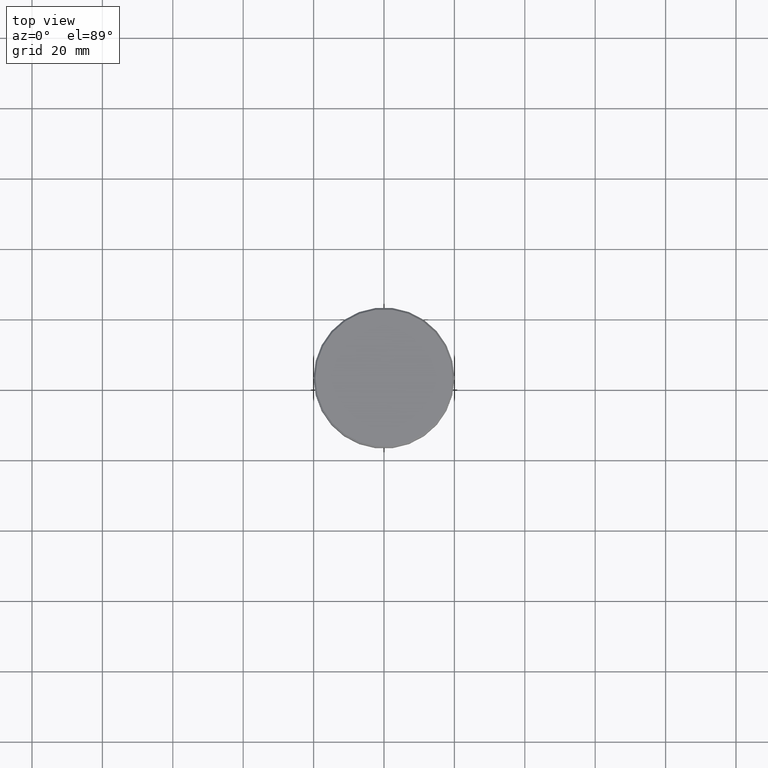
[diagram: clean part render]
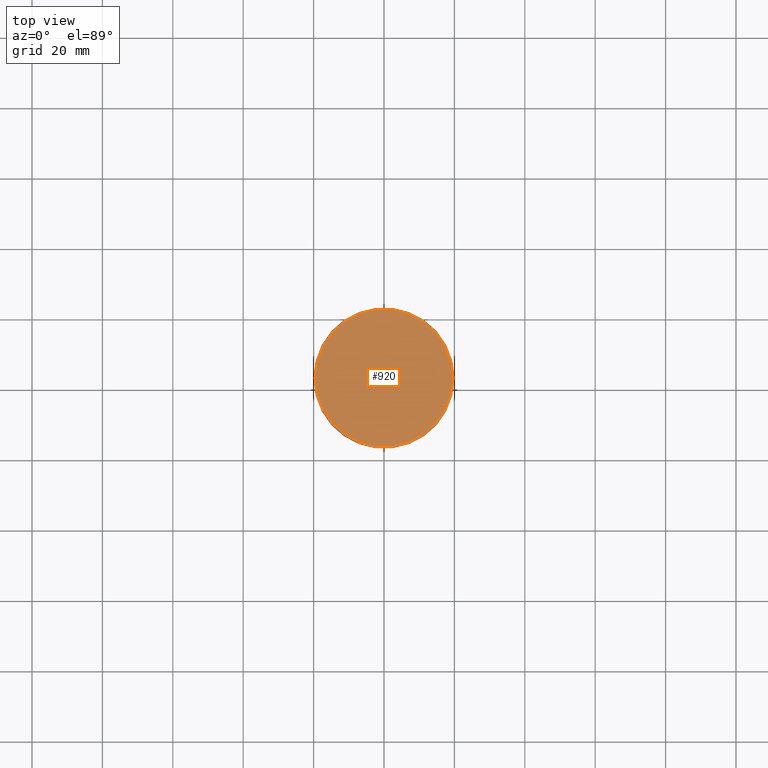
[diagram: same view with one face highlighted and labeled with its STEP entity id]
A machine part, top view. The second image highlights one B-rep face of the part: STEP entity #920.
In plain terms, the highlighted planar face has unit normal (0, -0, 1).
Its self-contained STEP definition (entity closure, byte-faithful):
#27 = CARTESIAN_POINT ( 'NONE',  ( 0.000000000000000000, 0.000000000000000000, 0.000000000000000000 ) ) ;
#29 = CARTESIAN_POINT ( 'NONE',  ( 0.000000000000000000, 0.000000000000000000, 0.000000000000000000 ) ) ;
#133 = DIRECTION ( 'NONE',  ( 1.000000000000000000, 0.000000000000000000, 0.000000000000000000 ) ) ;
#302 = AXIS2_PLACEMENT_3D ( 'NONE', #27, #579, #133 ) ;
#332 = EDGE_LOOP ( 'NONE', ( #1114, #352 ) ) ;
#352 = ORIENTED_EDGE ( 'NONE', *, *, #480, .T. ) ;
#458 = VERTEX_POINT ( 'NONE', #1032 ) ;
#480 = EDGE_CURVE ( 'NONE', #1034, #458, #602, .T. ) ;
#497 = DIRECTION ( 'NONE',  ( 1.000000000000000000, 0.000000000000000000, 0.000000000000000000 ) ) ;
#500 = EDGE_CURVE ( 'NONE', #458, #1034, #551, .T. ) ;
#551 = CIRCLE ( 'NONE', #1140, 19.49999999999998934 ) ;
#579 = DIRECTION ( 'NONE',  ( 0.000000000000000000, -0.000000000000000000, 1.000000000000000000 ) ) ;
#602 = CIRCLE ( 'NONE', #752, 19.49999999999998934 ) ;
#667 = FACE_OUTER_BOUND ( 'NONE', #332, .T. ) ;
#752 = AXIS2_PLACEMENT_3D ( 'NONE', #852, #939, #497 ) ;
#852 = CARTESIAN_POINT ( 'NONE',  ( 0.000000000000000000, 0.000000000000000000, 0.000000000000000000 ) ) ;
#857 = DIRECTION ( 'NONE',  ( -0.000000000000000000, -0.000000000000000000, 1.000000000000000000 ) ) ;
#920 = ADVANCED_FACE ( 'NONE', ( #667 ), #929, .T. ) ;
#929 = PLANE ( 'NONE',  #302 ) ;
#939 = DIRECTION ( 'NONE',  ( -0.000000000000000000, -0.000000000000000000, 1.000000000000000000 ) ) ;
#1032 = CARTESIAN_POINT ( 'NONE',  ( -19.49999999999998934, 0.000000000000000000, 0.000000000000000000 ) ) ;
#1034 = VERTEX_POINT ( 'NONE', #1158 ) ;
#1040 = DIRECTION ( 'NONE',  ( 1.000000000000000000, 0.000000000000000000, 0.000000000000000000 ) ) ;
#1114 = ORIENTED_EDGE ( 'NONE', *, *, #500, .T. ) ;
#1140 = AXIS2_PLACEMENT_3D ( 'NONE', #29, #857, #1040 ) ;
#1158 = CARTESIAN_POINT ( 'NONE',  ( 19.49999999999998934, 2.418677428316021937E-15, 0.000000000000000000 ) ) ;